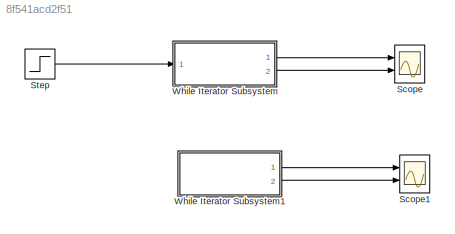
MODEL slx_8f541acd2f51
KIND model
BLOCK [Scope] Scope
  DataFormat = StructureWithTime
  Floating = off
  NumInputPorts = 2
  Ports = [2]
  SampleTime = 0
  ShowLegends = off
  YMax = 5~5
  YMin = -5~-5
BLOCK [Scope] Scope1
  DataFormat = StructureWithTime
  Floating = off
  NumInputPorts = 2
  Ports = [2]
  SampleTime = 0
  SaveName = ScopeData1
  ShowLegends = off
  YMax = 5~5
  YMin = -5~-5
BLOCK [Step] Step
  SampleTime = 0
  Time = 5
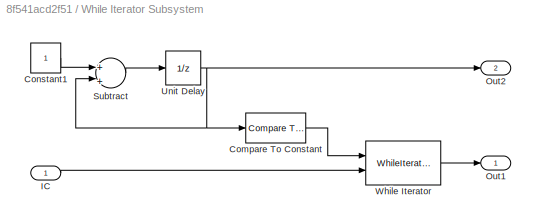
BLOCK [SubSystem] While Iterator Subsystem
  FunctionWithSeparateData = off
  MaskHideContents = off
  MinAlgLoopOccurrences = off
  Opaque = off
  Ports = [1, 2]
  PropExecContextOutsideSubsystem = off
  RTWSystemCode = Auto
  RequestExecContextInheritance = off
  TreatAsAtomicUnit = on
BLOCK [Reference] While Iterator Subsystem/Compare To Constant  REF=simulink/Logic and Bit
Operations/Compare
To Constant
  OutDataTypeStr = boolean
  Ports = [1, 1]
  SourceBlock = simulink/Logic and Bit\nOperations/Compare\nTo Constant
  SourceType = Compare To Constant
  ZeroCross = on
  const = 100
  relop = <=
BLOCK [Constant] While Iterator Subsystem/Constant1
BLOCK [Inport] While Iterator Subsystem/IC
  IconDisplay = Port number
BLOCK [Outport] While Iterator Subsystem/Out1
  IconDisplay = Port number
BLOCK [Outport] While Iterator Subsystem/Out2
  IconDisplay = Port number
  Port = 2
BLOCK [Sum] While Iterator Subsystem/Subtract
  InputSameDT = off
  Inputs = +|+
  OutDataTypeStr = Inherit: Inherit via internal rule
  Ports = [2, 1]
  SaturateOnIntegerOverflow = off
BLOCK [UnitDelay] While Iterator Subsystem/Unit Delay
  InputProcessing = Elements as channels (sample based)
  SampleTime = -1
BLOCK [WhileIterator] While Iterator Subsystem/While Iterator
  OutputDataType = double
  Ports = [2, 1]
  ShowIterationPort = on
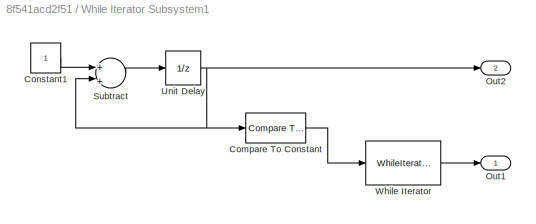
BLOCK [SubSystem] While Iterator Subsystem1
  FunctionWithSeparateData = off
  MaskHideContents = off
  MinAlgLoopOccurrences = off
  Opaque = off
  Ports = [0, 2]
  PropExecContextOutsideSubsystem = off
  RTWSystemCode = Auto
  RequestExecContextInheritance = off
  TreatAsAtomicUnit = on
BLOCK [Reference] While Iterator Subsystem1/Compare To Constant  REF=simulink/Logic and Bit
Operations/Compare
To Constant
  OutDataTypeStr = boolean
  Ports = [1, 1]
  SourceBlock = simulink/Logic and Bit\nOperations/Compare\nTo Constant
  SourceType = Compare To Constant
  ZeroCross = on
  const = 100
  relop = <=
BLOCK [Constant] While Iterator Subsystem1/Constant1
BLOCK [Outport] While Iterator Subsystem1/Out1
  IconDisplay = Port number
BLOCK [Outport] While Iterator Subsystem1/Out2
  IconDisplay = Port number
  Port = 2
BLOCK [Sum] While Iterator Subsystem1/Subtract
  InputSameDT = off
  Inputs = +|+
  OutDataTypeStr = Inherit: Inherit via internal rule
  Ports = [2, 1]
  SaturateOnIntegerOverflow = off
BLOCK [UnitDelay] While Iterator Subsystem1/Unit Delay
  InputProcessing = Elements as channels (sample based)
  SampleTime = -1
BLOCK [WhileIterator] While Iterator Subsystem1/While Iterator
  OutputDataType = double
  Ports = [1, 1]
  ShowIterationPort = on
  WhileBlockType = do-while
LINE Step:1 -> While Iterator Subsystem:1
LINE While Iterator Subsystem/Compare To Constant:1 -> While Iterator Subsystem/While Iterator:1
LINE While Iterator Subsystem/Constant1:1 -> While Iterator Subsystem/Subtract:1
LINE While Iterator Subsystem/IC:1 -> While Iterator Subsystem/While Iterator:2
LINE While Iterator Subsystem/Subtract:1 -> While Iterator Subsystem/Unit Delay:1
NET While Iterator Subsystem/Unit Delay:1 -> While Iterator Subsystem/Compare To Constant:1, While Iterator Subsystem/Out2:1, While Iterator Subsystem/Subtract:2
LINE While Iterator Subsystem/While Iterator:1 -> While Iterator Subsystem/Out1:1
LINE While Iterator Subsystem1/Compare To Constant:1 -> While Iterator Subsystem1/While Iterator:1
LINE While Iterator Subsystem1/Constant1:1 -> While Iterator Subsystem1/Subtract:1
LINE While Iterator Subsystem1/Subtract:1 -> While Iterator Subsystem1/Unit Delay:1
NET While Iterator Subsystem1/Unit Delay:1 -> While Iterator Subsystem1/Compare To Constant:1, While Iterator Subsystem1/Out2:1, While Iterator Subsystem1/Subtract:2
LINE While Iterator Subsystem1/While Iterator:1 -> While Iterator Subsystem1/Out1:1
LINE While Iterator Subsystem1:1 -> Scope1:1
LINE While Iterator Subsystem1:2 -> Scope1:2
LINE While Iterator Subsystem:1 -> Scope:1
LINE While Iterator Subsystem:2 -> Scope:2
note: NET lines group one-source signal fan-out (src -> all destinations, sorted); 1:1 wires keep LINE
